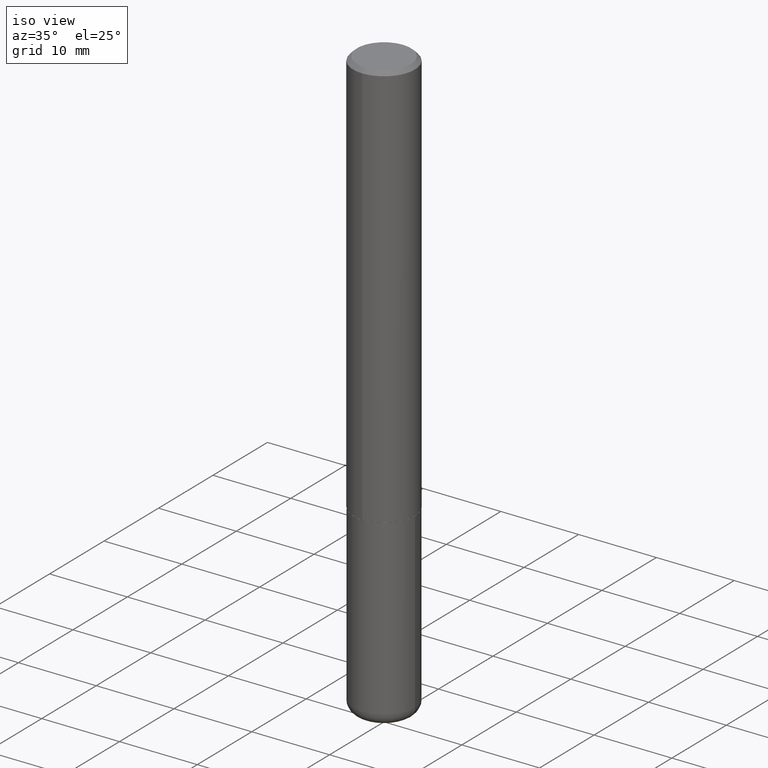
[diagram: clean part render]
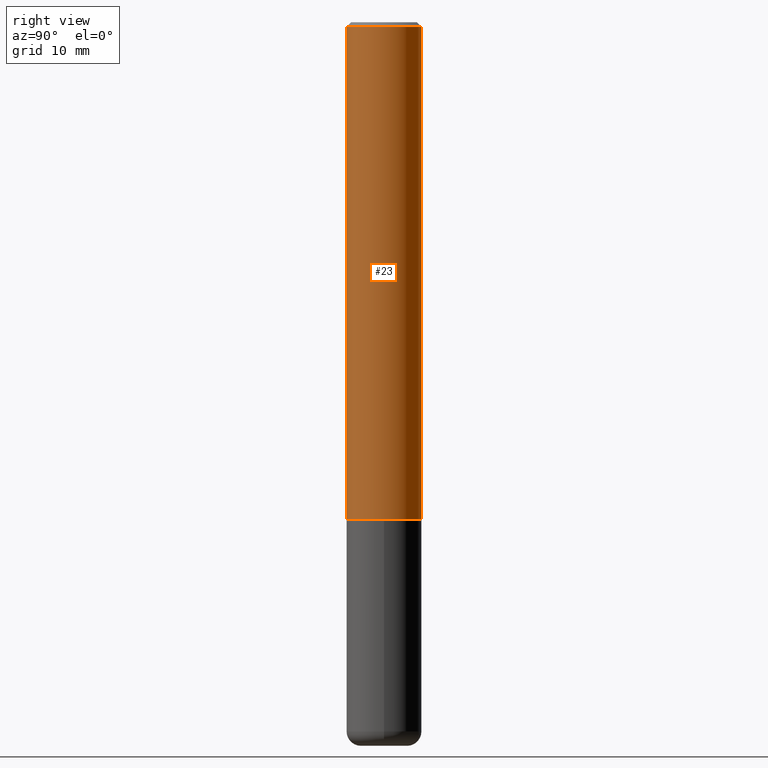
[diagram: tour spotlight — one face highlighted and labeled with its STEP entity id]
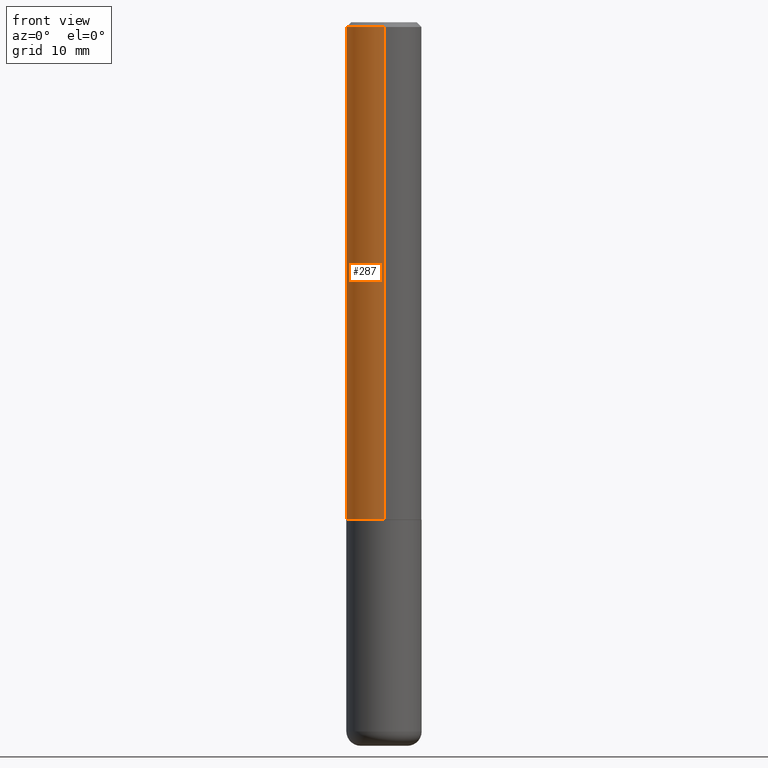
[diagram: tour spotlight — one face highlighted and labeled with its STEP entity id]
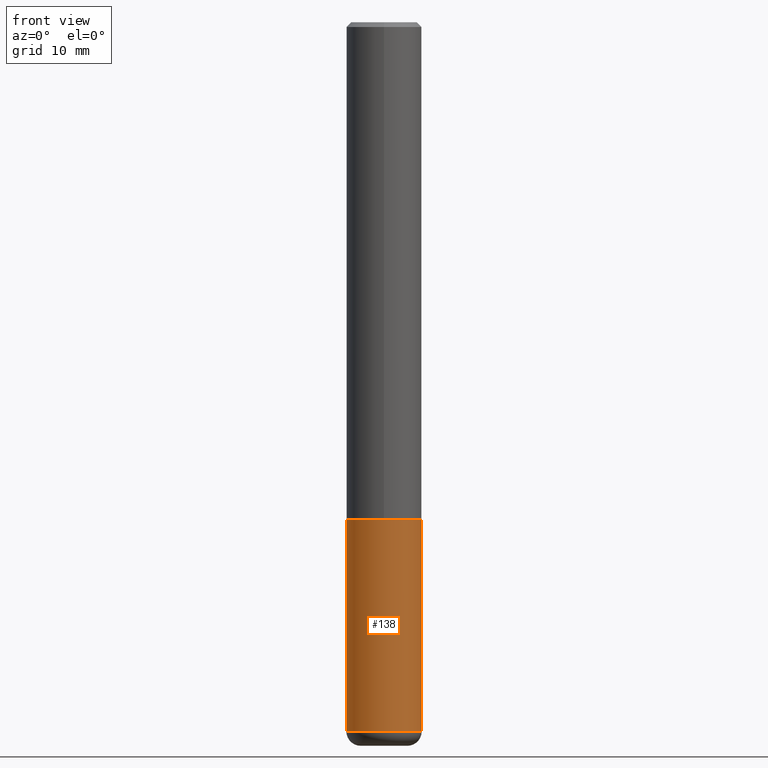
[diagram: tour spotlight — one face highlighted and labeled with its STEP entity id]
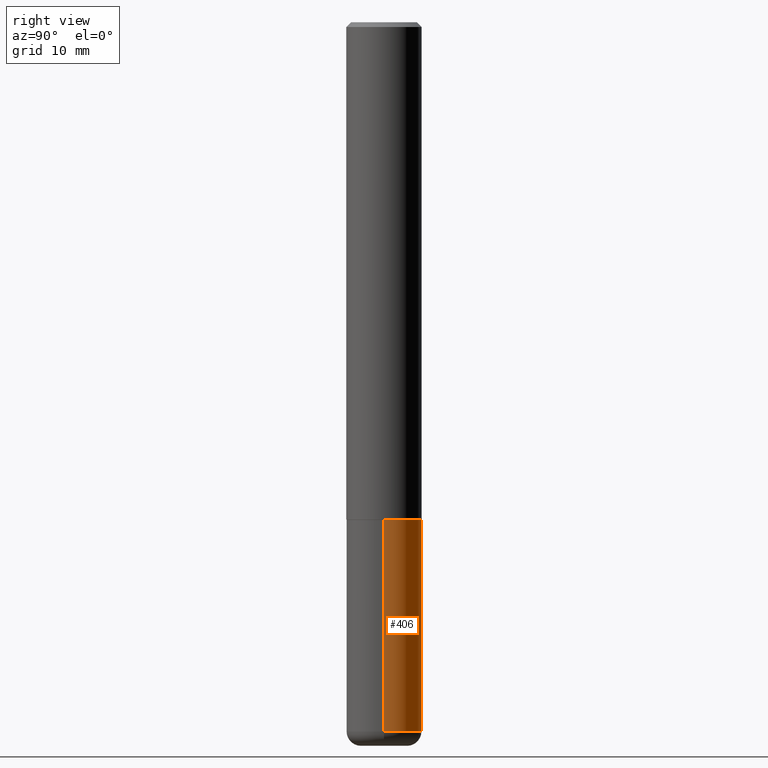
[diagram: tour spotlight — one face highlighted and labeled with its STEP entity id]
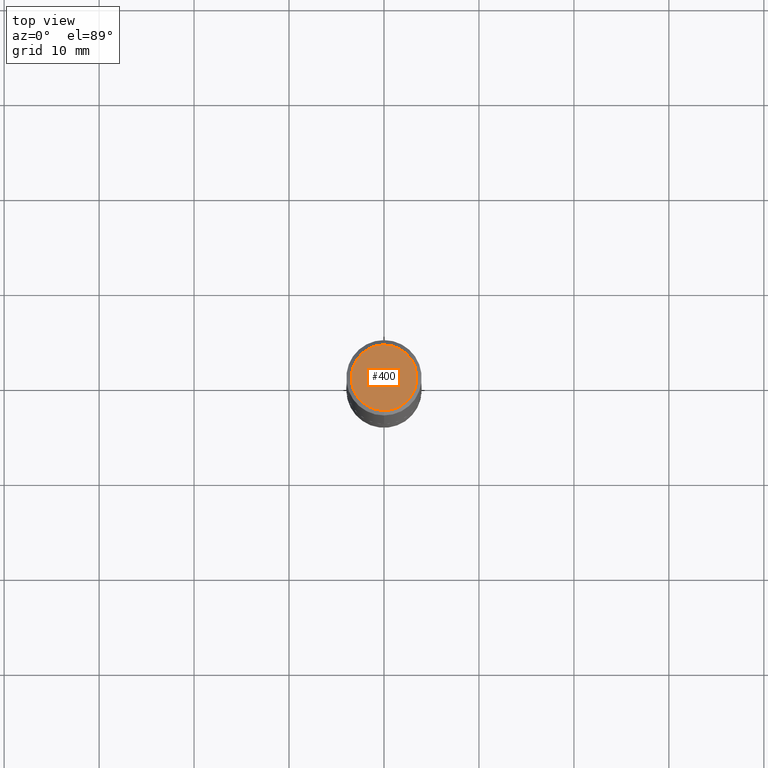
[diagram: tour spotlight — one face highlighted and labeled with its STEP entity id]
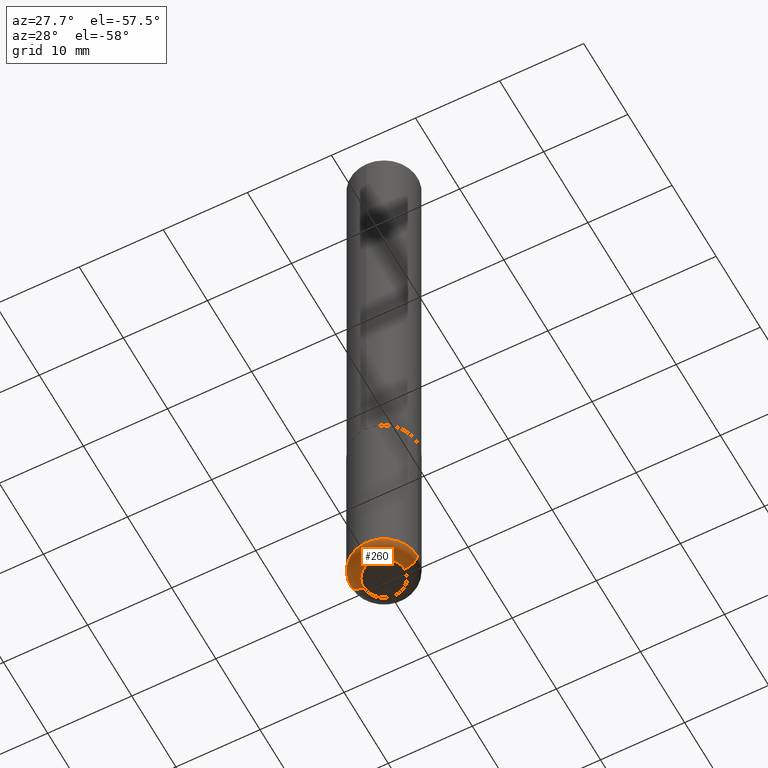
[diagram: tour spotlight — one face highlighted and labeled with its STEP entity id]
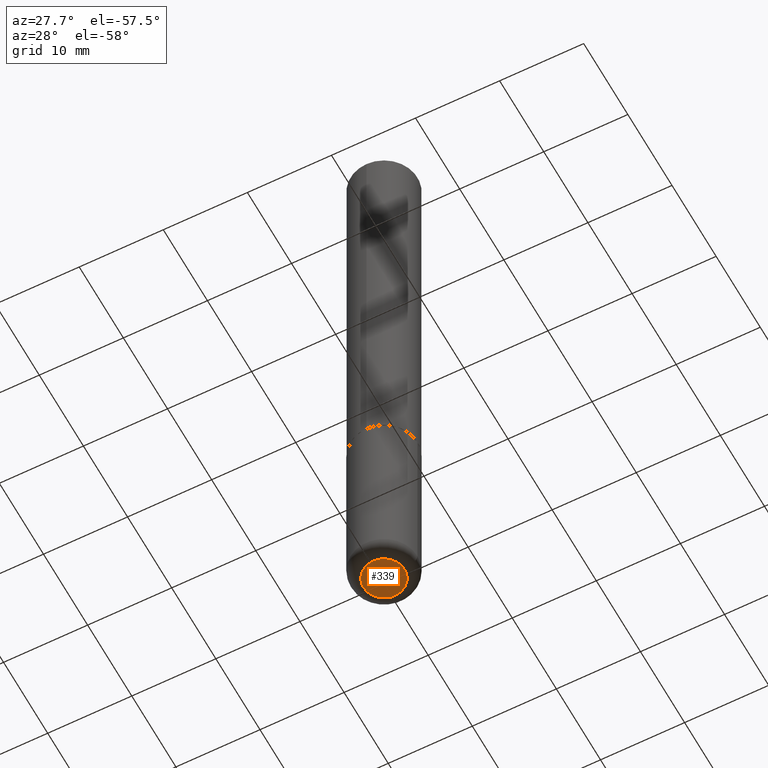
[diagram: tour spotlight — one face highlighted and labeled with its STEP entity id]
A machine part: a face-by-face anatomy tour. The part has 14 B-rep faces; the first image is the clean iso view, then the 7 largest visible faces are spotlighted one at a time (largest first), each with its STEP entity span.

Face 1 — right view, entity #23. In plain terms, the highlighted cylindrical surface (partial cylindrical patch) has radius 3.9688 mm, axis along (-0, 0, 1).
Definition (entity closure, byte-faithful):
#12 = LINE ( 'NONE', #205, #225 ) ;
#23 = ADVANCED_FACE ( 'NONE', ( #179 ), #403, .T. ) ;
#26 = CARTESIAN_POINT ( 'NONE',  ( 5.040730454096381281E-29, -7.198553011844980434E-15, -2.061500000000000110 ) ) ;
#31 = DIRECTION ( 'NONE',  ( -6.982962677686265922E-15, -1.000000000000000000, 3.496765431890250609E-15 ) ) ;
#37 = DIRECTION ( 'NONE',  ( -2.445176063107630933E-29, 3.491900563592034843E-15, 1.000000000000000000 ) ) ;
#57 = AXIS2_PLACEMENT_3D ( 'NONE', #95, #37, #169 ) ;
#69 = VERTEX_POINT ( 'NONE', #216 ) ;
#95 = CARTESIAN_POINT ( 'NONE',  ( 4.890352126215269679E-31, -6.983801127184080238E-17, -0.02000000000000003511 ) ) ;
#114 = VECTOR ( 'NONE', #253, 39.37007874015748143 ) ;
#119 = VERTEX_POINT ( 'NONE', #275 ) ;
#120 = ORIENTED_EDGE ( 'NONE', *, *, #353, .T. ) ;
#149 = DIRECTION ( 'NONE',  ( -2.445176063107630933E-29, 3.491900563592034843E-15, 1.000000000000000000 ) ) ;
#169 = DIRECTION ( 'NONE',  ( -6.982962677686265133E-15, -1.000000000000000000, 3.496765431890256920E-15 ) ) ;
#179 = FACE_OUTER_BOUND ( 'NONE', #207, .T. ) ;
#188 = VERTEX_POINT ( 'NONE', #292 ) ;
#196 = ORIENTED_EDGE ( 'NONE', *, *, #300, .T. ) ;
#199 = ORIENTED_EDGE ( 'NONE', *, *, #242, .F. ) ;
#205 = CARTESIAN_POINT ( 'NONE',  ( 1.110223024625157329E-15, 0.1562500000000001388, -5.456094630612559989E-16 ) ) ;
#207 = EDGE_LOOP ( 'NONE', ( #196, #120, #243, #199 ) ) ;
#213 = EDGE_CURVE ( 'NONE', #188, #272, #390, .T. ) ;
#216 = CARTESIAN_POINT ( 'NONE',  ( 1.110223024625183362E-15, 0.1562499999999930611, -2.061500000000000554 ) ) ;
#225 = VECTOR ( 'NONE', #323, 39.37007874015748143 ) ;
#242 = EDGE_CURVE ( 'NONE', #119, #188, #409, .T. ) ;
#243 = ORIENTED_EDGE ( 'NONE', *, *, #213, .F. ) ;
#248 = AXIS2_PLACEMENT_3D ( 'NONE', #26, #149, #31 ) ;
#253 = DIRECTION ( 'NONE',  ( -2.445176063107631214E-29, 3.491900563592034843E-15, 1.000000000000000000 ) ) ;
#271 = CARTESIAN_POINT ( 'NONE',  ( 0.000000000000000000, 0.000000000000000000, 0.000000000000000000 ) ) ;
#272 = VERTEX_POINT ( 'NONE', #414 ) ;
#275 = CARTESIAN_POINT ( 'NONE',  ( -1.091087918388430659E-15, -0.1562500000000074940, -2.061499999999999666 ) ) ;
#292 = CARTESIAN_POINT ( 'NONE',  ( -1.071952812151801215E-15, -0.1562500000000000833, -0.01999999999999948694 ) ) ;
#300 = EDGE_CURVE ( 'NONE', #119, #69, #333, .T. ) ;
#323 = DIRECTION ( 'NONE',  ( -2.445176063107631214E-29, 3.491900563592034843E-15, 1.000000000000000000 ) ) ;
#333 = CIRCLE ( 'NONE', #248, 0.1562500000000002776 ) ;
#334 = CARTESIAN_POINT ( 'NONE',  ( -1.091087918388479962E-15, -0.1562500000000001388, 5.456094630612559989E-16 ) ) ;
#340 = AXIS2_PLACEMENT_3D ( 'NONE', #271, #380, #404 ) ;
#353 = EDGE_CURVE ( 'NONE', #69, #272, #12, .T. ) ;
#380 = DIRECTION ( 'NONE',  ( -2.445176063107630933E-29, 3.491900563592034843E-15, 1.000000000000000000 ) ) ;
#390 = CIRCLE ( 'NONE', #57, 0.1562500000000000000 ) ;
#403 = CYLINDRICAL_SURFACE ( 'NONE', #340, 0.1562500000000001388 ) ;
#404 = DIRECTION ( 'NONE',  ( -6.982962677686265922E-15, -1.000000000000000000, 3.491900563592035238E-15 ) ) ;
#409 = LINE ( 'NONE', #334, #114 ) ;
#414 = CARTESIAN_POINT ( 'NONE',  ( 1.091087918388479568E-15, 0.1562499999999999445, -0.02000000000000057981 ) ) ;

Face 2 — front view, entity #287. In plain terms, the highlighted cylindrical surface (partial cylindrical patch) has radius 3.9688 mm, axis along (-0, 0, 1).
Definition (entity closure, byte-faithful):
#2 = AXIS2_PLACEMENT_3D ( 'NONE', #51, #376, #232 ) ;
#12 = LINE ( 'NONE', #205, #225 ) ;
#19 = AXIS2_PLACEMENT_3D ( 'NONE', #67, #316, #116 ) ;
#51 = CARTESIAN_POINT ( 'NONE',  ( 5.040730454096381281E-29, -7.198553011844980434E-15, -2.061500000000000110 ) ) ;
#67 = CARTESIAN_POINT ( 'NONE',  ( 4.890352126215269679E-31, -6.983801127184080238E-17, -0.02000000000000003511 ) ) ;
#69 = VERTEX_POINT ( 'NONE', #216 ) ;
#112 = ORIENTED_EDGE ( 'NONE', *, *, #242, .T. ) ;
#114 = VECTOR ( 'NONE', #253, 39.37007874015748143 ) ;
#116 = DIRECTION ( 'NONE',  ( -6.982962677686265133E-15, -1.000000000000000000, 3.496765431890256920E-15 ) ) ;
#119 = VERTEX_POINT ( 'NONE', #275 ) ;
#122 = CYLINDRICAL_SURFACE ( 'NONE', #211, 0.1562500000000001388 ) ;
#124 = DIRECTION ( 'NONE',  ( -6.982962677686265922E-15, -1.000000000000000000, 3.491900563592035238E-15 ) ) ;
#185 = CIRCLE ( 'NONE', #2, 0.1562500000000002776 ) ;
#188 = VERTEX_POINT ( 'NONE', #292 ) ;
#192 = FACE_OUTER_BOUND ( 'NONE', #203, .T. ) ;
#203 = EDGE_LOOP ( 'NONE', ( #415, #303, #112, #267 ) ) ;
#205 = CARTESIAN_POINT ( 'NONE',  ( 1.110223024625157329E-15, 0.1562500000000001388, -5.456094630612559989E-16 ) ) ;
#211 = AXIS2_PLACEMENT_3D ( 'NONE', #220, #288, #124 ) ;
#216 = CARTESIAN_POINT ( 'NONE',  ( 1.110223024625183362E-15, 0.1562499999999930611, -2.061500000000000554 ) ) ;
#220 = CARTESIAN_POINT ( 'NONE',  ( 0.000000000000000000, 0.000000000000000000, 0.000000000000000000 ) ) ;
#225 = VECTOR ( 'NONE', #323, 39.37007874015748143 ) ;
#232 = DIRECTION ( 'NONE',  ( -6.982962677686265922E-15, -1.000000000000000000, 3.496765431890250609E-15 ) ) ;
#239 = CIRCLE ( 'NONE', #19, 0.1562500000000000000 ) ;
#242 = EDGE_CURVE ( 'NONE', #119, #188, #409, .T. ) ;
#253 = DIRECTION ( 'NONE',  ( -2.445176063107631214E-29, 3.491900563592034843E-15, 1.000000000000000000 ) ) ;
#267 = ORIENTED_EDGE ( 'NONE', *, *, #290, .F. ) ;
#272 = VERTEX_POINT ( 'NONE', #414 ) ;
#275 = CARTESIAN_POINT ( 'NONE',  ( -1.091087918388430659E-15, -0.1562500000000074940, -2.061499999999999666 ) ) ;
#287 = ADVANCED_FACE ( 'NONE', ( #192 ), #122, .T. ) ;
#288 = DIRECTION ( 'NONE',  ( -2.445176063107630933E-29, 3.491900563592034843E-15, 1.000000000000000000 ) ) ;
#290 = EDGE_CURVE ( 'NONE', #272, #188, #239, .T. ) ;
#292 = CARTESIAN_POINT ( 'NONE',  ( -1.071952812151801215E-15, -0.1562500000000000833, -0.01999999999999948694 ) ) ;
#303 = ORIENTED_EDGE ( 'NONE', *, *, #391, .T. ) ;
#316 = DIRECTION ( 'NONE',  ( -2.445176063107630933E-29, 3.491900563592034843E-15, 1.000000000000000000 ) ) ;
#323 = DIRECTION ( 'NONE',  ( -2.445176063107631214E-29, 3.491900563592034843E-15, 1.000000000000000000 ) ) ;
#334 = CARTESIAN_POINT ( 'NONE',  ( -1.091087918388479962E-15, -0.1562500000000001388, 5.456094630612559989E-16 ) ) ;
#353 = EDGE_CURVE ( 'NONE', #69, #272, #12, .T. ) ;
#376 = DIRECTION ( 'NONE',  ( -2.445176063107630933E-29, 3.491900563592034843E-15, 1.000000000000000000 ) ) ;
#391 = EDGE_CURVE ( 'NONE', #69, #119, #185, .T. ) ;
#409 = LINE ( 'NONE', #334, #114 ) ;
#414 = CARTESIAN_POINT ( 'NONE',  ( 1.091087918388479568E-15, 0.1562499999999999445, -0.02000000000000057981 ) ) ;
#415 = ORIENTED_EDGE ( 'NONE', *, *, #353, .F. ) ;

Face 3 — front view, entity #138. In plain terms, the highlighted cylindrical surface (partial cylindrical patch) has radius 3.9688 mm, axis along (-0, 0, 1).
Definition (entity closure, byte-faithful):
#32 = CARTESIAN_POINT ( 'NONE',  ( 0.1562499999999999722, -1.135604305458732800E-14, -2.940000000000000391 ) ) ;
#34 = CYLINDRICAL_SURFACE ( 'NONE', #47, 0.1562500000000000000 ) ;
#40 = LINE ( 'NONE', #173, #164 ) ;
#47 = AXIS2_PLACEMENT_3D ( 'NONE', #118, #187, #160 ) ;
#55 = ORIENTED_EDGE ( 'NONE', *, *, #235, .F. ) ;
#60 = DIRECTION ( 'NONE',  ( -2.445468806185136597E-29, 3.491481338843145583E-15, 1.000000000000000000 ) ) ;
#65 = EDGE_CURVE ( 'NONE', #399, #371, #257, .T. ) ;
#77 = ORIENTED_EDGE ( 'NONE', *, *, #222, .T. ) ;
#89 = EDGE_CURVE ( 'NONE', #143, #371, #218, .T. ) ;
#118 = CARTESIAN_POINT ( 'NONE',  ( 0.000000000000000000, 0.000000000000000000, 0.000000000000000000 ) ) ;
#121 = AXIS2_PLACEMENT_3D ( 'NONE', #332, #134, #256 ) ;
#128 = ORIENTED_EDGE ( 'NONE', *, *, #65, .F. ) ;
#134 = DIRECTION ( 'NONE',  ( -2.445468806185136597E-29, 3.491481338843145583E-15, 1.000000000000000000 ) ) ;
#138 = ADVANCED_FACE ( 'NONE', ( #152 ), #34, .T. ) ;
#143 = VERTEX_POINT ( 'NONE', #32 ) ;
#152 = FACE_OUTER_BOUND ( 'NONE', #359, .T. ) ;
#156 = DIRECTION ( 'NONE',  ( 1.000000000000000000, -6.982962677686269077E-15, 0.000000000000000000 ) ) ;
#160 = DIRECTION ( 'NONE',  ( 1.000000000000000000, -6.982962677686266711E-15, 4.876176775795936353E-29 ) ) ;
#164 = VECTOR ( 'NONE', #294, 39.37007874015748143 ) ;
#173 = CARTESIAN_POINT ( 'NONE',  ( -0.1562500000000000000, 1.110223024625156540E-15, -7.685836078523291160E-30 ) ) ;
#187 = DIRECTION ( 'NONE',  ( -2.445468806185136597E-29, 3.491481338843145583E-15, 1.000000000000000000 ) ) ;
#193 = CARTESIAN_POINT ( 'NONE',  ( -0.1562499999999999722, -9.154732111573693074E-15, -2.940000000000000391 ) ) ;
#197 = AXIS2_PLACEMENT_3D ( 'NONE', #215, #60, #156 ) ;
#215 = CARTESIAN_POINT ( 'NONE',  ( 5.043779412756844791E-29, -7.201180261363988578E-15, -2.062500000000000000 ) ) ;
#218 = LINE ( 'NONE', #356, #416 ) ;
#222 = EDGE_CURVE ( 'NONE', #297, #143, #266, .T. ) ;
#235 = EDGE_CURVE ( 'NONE', #297, #399, #40, .T. ) ;
#244 = DIRECTION ( 'NONE',  ( -2.445468806185136877E-29, 3.491481338843145188E-15, 1.000000000000000000 ) ) ;
#256 = DIRECTION ( 'NONE',  ( 1.000000000000000000, -6.982962677686262766E-15, 0.000000000000000000 ) ) ;
#257 = CIRCLE ( 'NONE', #197, 0.1562500000000000000 ) ;
#266 = CIRCLE ( 'NONE', #121, 0.1562500000000000000 ) ;
#294 = DIRECTION ( 'NONE',  ( -2.445468806185136877E-29, 3.491481338843145188E-15, 1.000000000000000000 ) ) ;
#297 = VERTEX_POINT ( 'NONE', #193 ) ;
#332 = CARTESIAN_POINT ( 'NONE',  ( 7.189678290184301639E-29, -1.026495513619884961E-14, -2.940000000000000391 ) ) ;
#356 = CARTESIAN_POINT ( 'NONE',  ( 0.1562500000000000000, -1.091087918388479174E-15, 7.619026212181150377E-30 ) ) ;
#359 = EDGE_LOOP ( 'NONE', ( #55, #77, #412, #128 ) ) ;
#371 = VERTEX_POINT ( 'NONE', #385 ) ;
#375 = CARTESIAN_POINT ( 'NONE',  ( -0.1562500000000000000, -7.622844674156262556E-15, -2.062500000000000000 ) ) ;
#385 = CARTESIAN_POINT ( 'NONE',  ( 0.1562500000000000000, -8.292268179752468540E-15, -2.062500000000000000 ) ) ;
#399 = VERTEX_POINT ( 'NONE', #375 ) ;
#412 = ORIENTED_EDGE ( 'NONE', *, *, #89, .T. ) ;
#416 = VECTOR ( 'NONE', #244, 39.37007874015748143 ) ;

Face 4 — right view, entity #406. In plain terms, the highlighted cylindrical surface (partial cylindrical patch) has radius 3.9688 mm, axis along (-0, 0, 1).
Definition (entity closure, byte-faithful):
#32 = CARTESIAN_POINT ( 'NONE',  ( 0.1562499999999999722, -1.135604305458732800E-14, -2.940000000000000391 ) ) ;
#33 = FACE_OUTER_BOUND ( 'NONE', #81, .T. ) ;
#38 = DIRECTION ( 'NONE',  ( -2.445468806185136597E-29, 3.491481338843145583E-15, 1.000000000000000000 ) ) ;
#40 = LINE ( 'NONE', #173, #164 ) ;
#53 = ORIENTED_EDGE ( 'NONE', *, *, #56, .F. ) ;
#56 = EDGE_CURVE ( 'NONE', #371, #399, #349, .T. ) ;
#61 = AXIS2_PLACEMENT_3D ( 'NONE', #249, #38, #172 ) ;
#66 = DIRECTION ( 'NONE',  ( 1.000000000000000000, -6.982962677686266711E-15, 4.876176775795936353E-29 ) ) ;
#81 = EDGE_LOOP ( 'NONE', ( #223, #361, #53, #186 ) ) ;
#89 = EDGE_CURVE ( 'NONE', #143, #371, #218, .T. ) ;
#115 = DIRECTION ( 'NONE',  ( -2.445468806185136597E-29, 3.491481338843145583E-15, 1.000000000000000000 ) ) ;
#123 = AXIS2_PLACEMENT_3D ( 'NONE', #322, #162, #66 ) ;
#143 = VERTEX_POINT ( 'NONE', #32 ) ;
#147 = DIRECTION ( 'NONE',  ( 1.000000000000000000, -6.982962677686269077E-15, 0.000000000000000000 ) ) ;
#154 = CARTESIAN_POINT ( 'NONE',  ( 5.043779412756844791E-29, -7.201180261363988578E-15, -2.062500000000000000 ) ) ;
#162 = DIRECTION ( 'NONE',  ( -2.445468806185136597E-29, 3.491481338843145583E-15, 1.000000000000000000 ) ) ;
#164 = VECTOR ( 'NONE', #294, 39.37007874015748143 ) ;
#172 = DIRECTION ( 'NONE',  ( 1.000000000000000000, -6.982962677686262766E-15, 0.000000000000000000 ) ) ;
#173 = CARTESIAN_POINT ( 'NONE',  ( -0.1562500000000000000, 1.110223024625156540E-15, -7.685836078523291160E-30 ) ) ;
#186 = ORIENTED_EDGE ( 'NONE', *, *, #89, .F. ) ;
#193 = CARTESIAN_POINT ( 'NONE',  ( -0.1562499999999999722, -9.154732111573693074E-15, -2.940000000000000391 ) ) ;
#218 = LINE ( 'NONE', #356, #416 ) ;
#223 = ORIENTED_EDGE ( 'NONE', *, *, #269, .T. ) ;
#235 = EDGE_CURVE ( 'NONE', #297, #399, #40, .T. ) ;
#244 = DIRECTION ( 'NONE',  ( -2.445468806185136877E-29, 3.491481338843145188E-15, 1.000000000000000000 ) ) ;
#249 = CARTESIAN_POINT ( 'NONE',  ( 7.189678290184301639E-29, -1.026495513619884961E-14, -2.940000000000000391 ) ) ;
#269 = EDGE_CURVE ( 'NONE', #143, #297, #363, .T. ) ;
#277 = AXIS2_PLACEMENT_3D ( 'NONE', #154, #115, #147 ) ;
#283 = CYLINDRICAL_SURFACE ( 'NONE', #123, 0.1562500000000000000 ) ;
#294 = DIRECTION ( 'NONE',  ( -2.445468806185136877E-29, 3.491481338843145188E-15, 1.000000000000000000 ) ) ;
#297 = VERTEX_POINT ( 'NONE', #193 ) ;
#322 = CARTESIAN_POINT ( 'NONE',  ( 0.000000000000000000, 0.000000000000000000, 0.000000000000000000 ) ) ;
#349 = CIRCLE ( 'NONE', #277, 0.1562500000000000000 ) ;
#356 = CARTESIAN_POINT ( 'NONE',  ( 0.1562500000000000000, -1.091087918388479174E-15, 7.619026212181150377E-30 ) ) ;
#361 = ORIENTED_EDGE ( 'NONE', *, *, #235, .T. ) ;
#363 = CIRCLE ( 'NONE', #61, 0.1562500000000000000 ) ;
#371 = VERTEX_POINT ( 'NONE', #385 ) ;
#375 = CARTESIAN_POINT ( 'NONE',  ( -0.1562500000000000000, -7.622844674156262556E-15, -2.062500000000000000 ) ) ;
#385 = CARTESIAN_POINT ( 'NONE',  ( 0.1562500000000000000, -8.292268179752468540E-15, -2.062500000000000000 ) ) ;
#399 = VERTEX_POINT ( 'NONE', #375 ) ;
#406 = ADVANCED_FACE ( 'NONE', ( #33 ), #283, .T. ) ;
#416 = VECTOR ( 'NONE', #244, 39.37007874015748143 ) ;

Face 5 — top view, entity #400. In plain terms, the highlighted planar face has unit normal (0, -0, -1).
Definition (entity closure, byte-faithful):
#18 = PLANE ( 'NONE',  #230 ) ;
#70 = CIRCLE ( 'NONE', #176, 0.1362500000000001210 ) ;
#73 = CARTESIAN_POINT ( 'NONE',  ( 2.190428889620163364E-45, -3.128101894001013777E-31, -8.958164292007245599E-17 ) ) ;
#99 = DIRECTION ( 'NONE',  ( -2.445176063107630933E-29, 3.491900563592034843E-15, 1.000000000000000000 ) ) ;
#100 = ORIENTED_EDGE ( 'NONE', *, *, #195, .T. ) ;
#131 = EDGE_LOOP ( 'NONE', ( #381, #100 ) ) ;
#157 = CARTESIAN_POINT ( 'NONE',  ( 9.514286648347545493E-16, 0.1362500000000001210, -5.205622732494513937E-16 ) ) ;
#165 = VERTEX_POINT ( 'NONE', #282 ) ;
#176 = AXIS2_PLACEMENT_3D ( 'NONE', #384, #254, #364 ) ;
#177 = CARTESIAN_POINT ( 'NONE',  ( 1.021258291611617059E-15, 0.1362500000000001210, -5.653530947094876156E-16 ) ) ;
#189 = DIRECTION ( 'NONE',  ( 2.445176063107630653E-29, -3.491900563592034843E-15, -1.000000000000000000 ) ) ;
#195 = EDGE_CURVE ( 'NONE', #165, #345, #302, .T. ) ;
#208 = FACE_OUTER_BOUND ( 'NONE', #131, .T. ) ;
#230 = AXIS2_PLACEMENT_3D ( 'NONE', #157, #189, #319 ) ;
#254 = DIRECTION ( 'NONE',  ( -2.445176063107630933E-29, 3.491900563592034843E-15, 1.000000000000000000 ) ) ;
#282 = CARTESIAN_POINT ( 'NONE',  ( -1.003347832174086672E-15, -0.1362500000000001210, 3.861898088693426789E-16 ) ) ;
#301 = DIRECTION ( 'NONE',  ( -6.982962677686265922E-15, -1.000000000000000000, 3.491900563592034843E-15 ) ) ;
#302 = CIRCLE ( 'NONE', #309, 0.1362500000000001210 ) ;
#309 = AXIS2_PLACEMENT_3D ( 'NONE', #73, #99, #301 ) ;
#319 = DIRECTION ( 'NONE',  ( 6.982962677686265922E-15, 1.000000000000000000, -3.491900563592034843E-15 ) ) ;
#321 = EDGE_CURVE ( 'NONE', #345, #165, #70, .T. ) ;
#345 = VERTEX_POINT ( 'NONE', #177 ) ;
#364 = DIRECTION ( 'NONE',  ( -6.982962677686265922E-15, -1.000000000000000000, 3.491900563592034843E-15 ) ) ;
#381 = ORIENTED_EDGE ( 'NONE', *, *, #321, .T. ) ;
#384 = CARTESIAN_POINT ( 'NONE',  ( 2.190428889620163364E-45, -3.128101894001013777E-31, -8.958164292007245599E-17 ) ) ;
#400 = ADVANCED_FACE ( 'NONE', ( #208 ), #18, .F. ) ;

Face 6 — auxiliary view, entity #260. In plain terms, the highlighted toroidal blend (fillet) surface has major radius 2.4447 mm and minor (blend) radius 1.524 mm.
Definition (entity closure, byte-faithful):
#6 = DIRECTION ( 'NONE',  ( -1.000000000000000000, 7.105427357600997914E-15, 0.000000000000000000 ) ) ;
#20 = DIRECTION ( 'NONE',  ( 1.000000000000000000, -6.982962677686274599E-15, 0.000000000000000000 ) ) ;
#22 = ORIENTED_EDGE ( 'NONE', *, *, #49, .T. ) ;
#25 = EDGE_CURVE ( 'NONE', #171, #153, #324, .T. ) ;
#30 = ORIENTED_EDGE ( 'NONE', *, *, #222, .F. ) ;
#32 = CARTESIAN_POINT ( 'NONE',  ( 0.1562499999999999722, -1.135604305458732800E-14, -2.940000000000000391 ) ) ;
#35 = CIRCLE ( 'NONE', #83, 0.05999999999999994227 ) ;
#43 = DIRECTION ( 'NONE',  ( 1.000000000000000000, -6.982962677686259611E-15, 0.000000000000000000 ) ) ;
#45 = AXIS2_PLACEMENT_3D ( 'NONE', #110, #337, #43 ) ;
#49 = EDGE_CURVE ( 'NONE', #153, #143, #133, .T. ) ;
#83 = AXIS2_PLACEMENT_3D ( 'NONE', #285, #393, #6 ) ;
#101 = CARTESIAN_POINT ( 'NONE',  ( 7.189678290184301639E-29, -1.026495513619884961E-14, -2.940000000000000391 ) ) ;
#110 = CARTESIAN_POINT ( 'NONE',  ( 7.336406418555409790E-29, -1.047444401652943635E-14, -3.000000000000000444 ) ) ;
#121 = AXIS2_PLACEMENT_3D ( 'NONE', #332, #134, #256 ) ;
#133 = CIRCLE ( 'NONE', #408, 0.05999999999999994227 ) ;
#134 = DIRECTION ( 'NONE',  ( -2.445468806185136597E-29, 3.491481338843145583E-15, 1.000000000000000000 ) ) ;
#136 = DIRECTION ( 'NONE',  ( -6.982962677686266711E-15, -1.000000000000000000, 3.491481338843145583E-15 ) ) ;
#143 = VERTEX_POINT ( 'NONE', #32 ) ;
#153 = VERTEX_POINT ( 'NONE', #155 ) ;
#155 = CARTESIAN_POINT ( 'NONE',  ( 0.09625000000000000222, -1.114655417425673968E-14, -3.000000000000000444 ) ) ;
#167 = EDGE_CURVE ( 'NONE', #171, #297, #35, .T. ) ;
#171 = VERTEX_POINT ( 'NONE', #252 ) ;
#193 = CARTESIAN_POINT ( 'NONE',  ( -0.1562499999999999722, -9.154732111573693074E-15, -2.940000000000000391 ) ) ;
#222 = EDGE_CURVE ( 'NONE', #297, #143, #266, .T. ) ;
#252 = CARTESIAN_POINT ( 'NONE',  ( -0.09625000000000000222, -9.472639372467016689E-15, -3.000000000000000444 ) ) ;
#256 = DIRECTION ( 'NONE',  ( 1.000000000000000000, -6.982962677686262766E-15, 0.000000000000000000 ) ) ;
#260 = ADVANCED_FACE ( 'NONE', ( #394 ), #325, .T. ) ;
#266 = CIRCLE ( 'NONE', #121, 0.1562500000000000000 ) ;
#276 = EDGE_LOOP ( 'NONE', ( #357, #307, #22, #30 ) ) ;
#285 = CARTESIAN_POINT ( 'NONE',  ( -0.09625000000000000222, -9.581057753029751986E-15, -2.940000000000000391 ) ) ;
#293 = DIRECTION ( 'NONE',  ( 1.000000000000000000, -6.982962677686265922E-15, 4.883557194083112340E-29 ) ) ;
#297 = VERTEX_POINT ( 'NONE', #193 ) ;
#299 = CARTESIAN_POINT ( 'NONE',  ( 0.09625000000000000222, -1.093706529392615137E-14, -2.940000000000000391 ) ) ;
#307 = ORIENTED_EDGE ( 'NONE', *, *, #25, .T. ) ;
#324 = CIRCLE ( 'NONE', #45, 0.09625000000000000222 ) ;
#325 = TOROIDAL_SURFACE ( 'NONE', #396, 0.09625000000000000222, 0.05999999999999995615 ) ;
#330 = DIRECTION ( 'NONE',  ( -2.445468806185136597E-29, 3.491481338843145583E-15, 1.000000000000000000 ) ) ;
#332 = CARTESIAN_POINT ( 'NONE',  ( 7.189678290184301639E-29, -1.026495513619884961E-14, -2.940000000000000391 ) ) ;
#337 = DIRECTION ( 'NONE',  ( -2.445468806185136597E-29, 3.491481338843145583E-15, 1.000000000000000000 ) ) ;
#357 = ORIENTED_EDGE ( 'NONE', *, *, #167, .F. ) ;
#393 = DIRECTION ( 'NONE',  ( 7.105427357601001859E-15, 1.000000000000000000, -3.491481338843145583E-15 ) ) ;
#394 = FACE_OUTER_BOUND ( 'NONE', #276, .T. ) ;
#396 = AXIS2_PLACEMENT_3D ( 'NONE', #101, #330, #293 ) ;
#408 = AXIS2_PLACEMENT_3D ( 'NONE', #299, #136, #20 ) ;

Face 7 — auxiliary view, entity #339. In plain terms, the highlighted planar face has unit normal (0, -0, -1).
Definition (entity closure, byte-faithful):
#11 = EDGE_LOOP ( 'NONE', ( #386, #346 ) ) ;
#25 = EDGE_CURVE ( 'NONE', #171, #153, #324, .T. ) ;
#41 = AXIS2_PLACEMENT_3D ( 'NONE', #392, #129, #395 ) ;
#43 = DIRECTION ( 'NONE',  ( 1.000000000000000000, -6.982962677686259611E-15, 0.000000000000000000 ) ) ;
#45 = AXIS2_PLACEMENT_3D ( 'NONE', #110, #337, #43 ) ;
#76 = AXIS2_PLACEMENT_3D ( 'NONE', #109, #377, #233 ) ;
#109 = CARTESIAN_POINT ( 'NONE',  ( 7.336406418555409790E-29, -1.047444401652943635E-14, -3.000000000000000444 ) ) ;
#110 = CARTESIAN_POINT ( 'NONE',  ( 7.336406418555409790E-29, -1.047444401652943635E-14, -3.000000000000000444 ) ) ;
#129 = DIRECTION ( 'NONE',  ( -2.445468806185136597E-29, 3.491481338843145583E-15, 1.000000000000000000 ) ) ;
#151 = CIRCLE ( 'NONE', #41, 0.09625000000000000222 ) ;
#153 = VERTEX_POINT ( 'NONE', #155 ) ;
#155 = CARTESIAN_POINT ( 'NONE',  ( 0.09625000000000000222, -1.114655417425673968E-14, -3.000000000000000444 ) ) ;
#171 = VERTEX_POINT ( 'NONE', #252 ) ;
#191 = EDGE_CURVE ( 'NONE', #153, #171, #151, .T. ) ;
#202 = PLANE ( 'NONE',  #76 ) ;
#233 = DIRECTION ( 'NONE',  ( -1.000000000000000000, 6.982962677686265922E-15, -4.876176775795935793E-29 ) ) ;
#252 = CARTESIAN_POINT ( 'NONE',  ( -0.09625000000000000222, -9.472639372467016689E-15, -3.000000000000000444 ) ) ;
#263 = FACE_OUTER_BOUND ( 'NONE', #11, .T. ) ;
#324 = CIRCLE ( 'NONE', #45, 0.09625000000000000222 ) ;
#337 = DIRECTION ( 'NONE',  ( -2.445468806185136597E-29, 3.491481338843145583E-15, 1.000000000000000000 ) ) ;
#339 = ADVANCED_FACE ( 'NONE', ( #263 ), #202, .T. ) ;
#346 = ORIENTED_EDGE ( 'NONE', *, *, #25, .F. ) ;
#377 = DIRECTION ( 'NONE',  ( 2.438088387897960049E-29, -3.491481338843145188E-15, -1.000000000000000000 ) ) ;
#386 = ORIENTED_EDGE ( 'NONE', *, *, #191, .F. ) ;
#392 = CARTESIAN_POINT ( 'NONE',  ( 7.336406418555409790E-29, -1.047444401652943635E-14, -3.000000000000000444 ) ) ;
#395 = DIRECTION ( 'NONE',  ( 1.000000000000000000, -6.982962677686259611E-15, 0.000000000000000000 ) ) ;